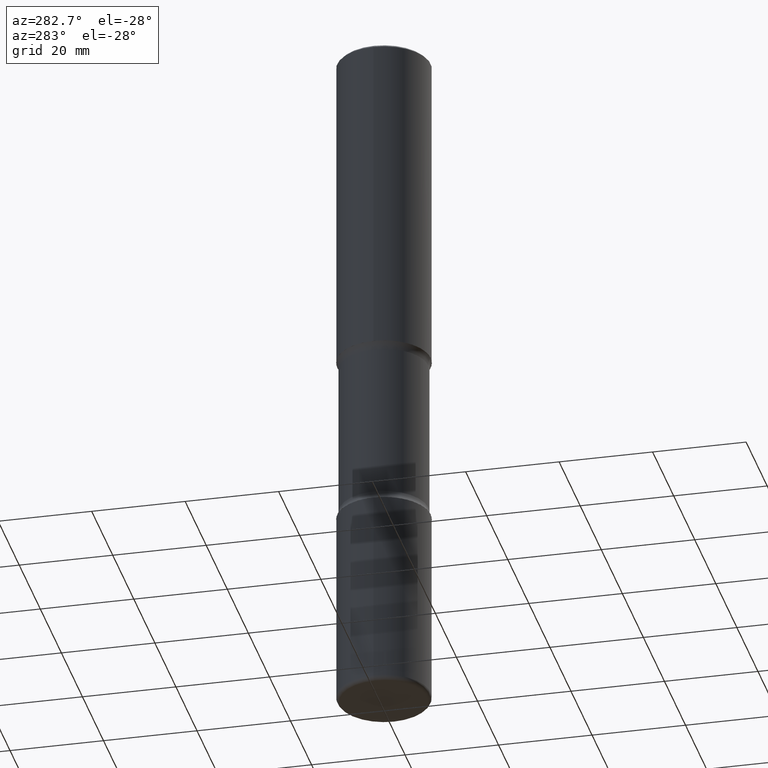
[diagram: clean part render]
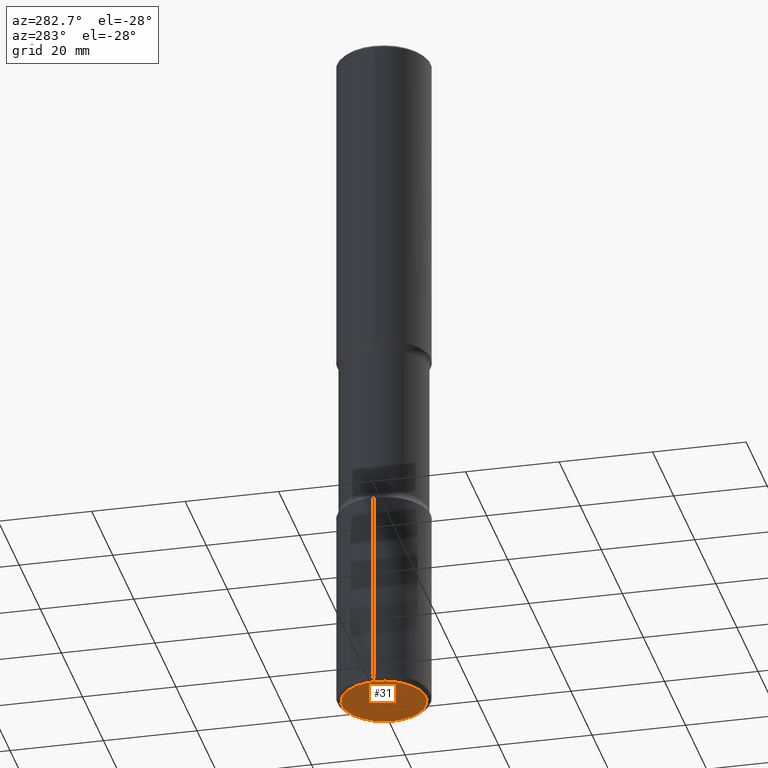
[diagram: same view with one face highlighted and labeled with its STEP entity id]
A machine part, auxiliary view. The second image highlights one B-rep face of the part: STEP entity #31.
In plain terms, the highlighted planar face has unit normal (0, -0, -1).
Its self-contained STEP definition (entity closure, byte-faithful):
#6 = AXIS2_PLACEMENT_3D ( 'NONE', #249, #505, #507 ) ;
#27 = DIRECTION ( 'NONE',  ( -1.000000000000000000, 6.982962677686265922E-15, -4.876176775795935793E-29 ) ) ;
#31 = ADVANCED_FACE ( 'NONE', ( #321 ), #290, .T. ) ;
#77 = CARTESIAN_POINT ( 'NONE',  ( 0.3543000000000003924, -2.309300672324243991E-14, -5.905499999999999972 ) ) ;
#92 = CIRCLE ( 'NONE', #480, 0.3543000000000003924 ) ;
#189 = CARTESIAN_POINT ( 'NONE',  ( -0.3543000000000003924, -1.789273103242020530E-14, -5.905499999999999972 ) ) ;
#198 = VERTEX_POINT ( 'NONE', #189 ) ;
#204 = EDGE_CURVE ( 'NONE', #198, #502, #92, .T. ) ;
#213 = EDGE_LOOP ( 'NONE', ( #490, #520 ) ) ;
#249 = CARTESIAN_POINT ( 'NONE',  ( 1.444171603492632270E-28, -2.061894304653819197E-14, -5.905499999999999972 ) ) ;
#274 = DIRECTION ( 'NONE',  ( -2.445468806185136597E-29, 3.491481338843145583E-15, 1.000000000000000000 ) ) ;
#290 = PLANE ( 'NONE',  #556 ) ;
#321 = FACE_OUTER_BOUND ( 'NONE', #213, .T. ) ;
#394 = EDGE_CURVE ( 'NONE', #502, #198, #404, .T. ) ;
#404 = CIRCLE ( 'NONE', #6, 0.3543000000000003924 ) ;
#412 = CARTESIAN_POINT ( 'NONE',  ( 1.723044131305019458E-29, -3.883280511437256617E-14, -5.905499999999998195 ) ) ;
#452 = DIRECTION ( 'NONE',  ( 1.000000000000000000, -6.982962677686265133E-15, 0.000000000000000000 ) ) ;
#456 = DIRECTION ( 'NONE',  ( 2.438088387897960049E-29, -3.491481338843145188E-15, -1.000000000000000000 ) ) ;
#480 = AXIS2_PLACEMENT_3D ( 'NONE', #544, #274, #452 ) ;
#490 = ORIENTED_EDGE ( 'NONE', *, *, #394, .F. ) ;
#502 = VERTEX_POINT ( 'NONE', #77 ) ;
#505 = DIRECTION ( 'NONE',  ( -2.445468806185136597E-29, 3.491481338843145583E-15, 1.000000000000000000 ) ) ;
#507 = DIRECTION ( 'NONE',  ( 1.000000000000000000, -6.982962677686265133E-15, 0.000000000000000000 ) ) ;
#520 = ORIENTED_EDGE ( 'NONE', *, *, #204, .F. ) ;
#544 = CARTESIAN_POINT ( 'NONE',  ( 1.444171603492632270E-28, -2.061894304653819197E-14, -5.905499999999999972 ) ) ;
#556 = AXIS2_PLACEMENT_3D ( 'NONE', #412, #456, #27 ) ;